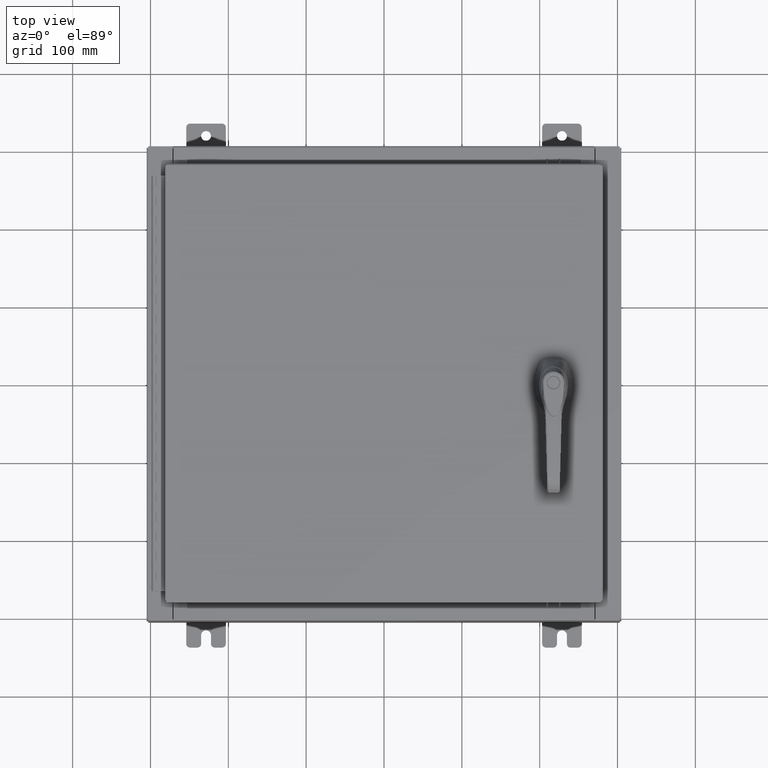
[diagram: clean part render]
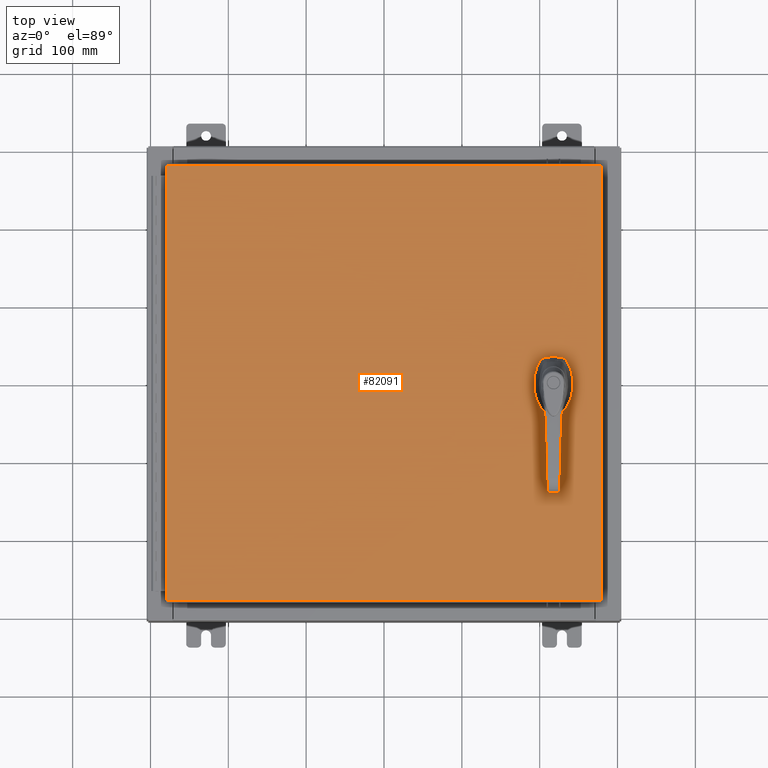
[diagram: same view with one face highlighted and labeled with its STEP entity id]
A machine part, top view. The second image highlights one B-rep face of the part: STEP entity #82091.
In plain terms, the highlighted planar face has unit normal (0, 0, -1).
Its self-contained STEP definition (entity closure, byte-faithful):
#1146 = CARTESIAN_POINT ( 'NONE',  ( 10.99029999999999600, -11.00630000000000100, -2.048885995248197400E-016 ) ) ;
#2213 = CIRCLE ( 'NONE', #97302, 0.1715000000000011500 ) ;
#3888 = CARTESIAN_POINT ( 'NONE',  ( 8.175000000000070000, 0.2002273707563079800, 0.0000000000000000000 ) ) ;
#5723 = CARTESIAN_POINT ( 'NONE',  ( 8.749499999999997600, -1.338000000000000100, 0.0000000000000000000 ) ) ;
#8527 = VECTOR ( 'NONE', #65810, 39.37007874015748100 ) ;
#8655 = CARTESIAN_POINT ( 'NONE',  ( 10.99029999999999800, 11.00629999999999600, -2.048885995248197400E-016 ) ) ;
#9836 = DIRECTION ( 'NONE',  ( 0.0000000000000000000, 1.000000000000000000, 0.0000000000000000000 ) ) ;
#10230 = DIRECTION ( 'NONE',  ( -0.0000000000000000000, 0.0000000000000000000, 1.000000000000000000 ) ) ;
#13142 = EDGE_CURVE ( 'NONE', #44727, #59702, #58127, .T. ) ;
#13822 = CARTESIAN_POINT ( 'NONE',  ( 0.0000000000000000000, -0.4029999999999252000, 0.0000000000000000000 ) ) ;
#15001 = LINE ( 'NONE', #43219, #20434 ) ;
#15226 = EDGE_CURVE ( 'NONE', #45711, #40094, #23970, .T. ) ;
#17154 = ORIENTED_EDGE ( 'NONE', *, *, #93615, .T. ) ;
#17390 = DIRECTION ( 'NONE',  ( -1.000000000000000000, -0.0000000000000000000, -0.0000000000000000000 ) ) ;
#19086 = EDGE_CURVE ( 'NONE', #77587, #98213, #90108, .T. ) ;
#19620 = EDGE_CURVE ( 'NONE', #52199, #32315, #39896, .T. ) ;
#20434 = VECTOR ( 'NONE', #34864, 39.37007874015748100 ) ;
#21237 = VECTOR ( 'NONE', #104829, 39.37007874015748100 ) ;
#21996 = DIRECTION ( 'NONE',  ( 2.728745808672812900E-015, -1.000000000000000000, 0.0000000000000000000 ) ) ;
#23509 = DIRECTION ( 'NONE',  ( 0.0000000000000000000, -1.000000000000000000, 0.0000000000000000000 ) ) ;
#23777 = CARTESIAN_POINT ( 'NONE',  ( 8.778227370756305000, -0.4029999999999252000, 0.0000000000000000000 ) ) ;
#23868 = DIRECTION ( 'NONE',  ( -1.000000000000000000, 0.0000000000000000000, -0.0000000000000000000 ) ) ;
#23970 = LINE ( 'NONE', #52984, #21237 ) ;
#27047 = ORIENTED_EDGE ( 'NONE', *, *, #78691, .F. ) ;
#27760 = ORIENTED_EDGE ( 'NONE', *, *, #54294, .F. ) ;
#29487 = CARTESIAN_POINT ( 'NONE',  ( 8.980999999999921700, 0.2002273707563080300, 0.0000000000000000000 ) ) ;
#29579 = DIRECTION ( 'NONE',  ( 0.0000000000000000000, -1.000000000000000000, 0.0000000000000000000 ) ) ;
#29899 = DIRECTION ( 'NONE',  ( -0.0000000000000000000, 0.0000000000000000000, 1.000000000000000000 ) ) ;
#31948 = LINE ( 'NONE', #8655, #78060 ) ;
#32315 = VERTEX_POINT ( 'NONE', #3888 ) ;
#33055 = CIRCLE ( 'NONE', #42823, 0.1715000000000011500 ) ;
#33489 = CARTESIAN_POINT ( 'NONE',  ( 8.175000000000070000, -0.2002273707563079800, 0.0000000000000000000 ) ) ;
#34095 = CARTESIAN_POINT ( 'NONE',  ( 8.980999999999921700, -0.2002273707563079800, 0.0000000000000000000 ) ) ;
#34211 = EDGE_CURVE ( 'NONE', #46255, #74174, #2213, .T. ) ;
#34864 = DIRECTION ( 'NONE',  ( -1.000000000000000000, 0.0000000000000000000, 0.0000000000000000000 ) ) ;
#35820 = CARTESIAN_POINT ( 'NONE',  ( 8.577999999999995900, -1.338000000000000100, 0.0000000000000000000 ) ) ;
#35999 = CARTESIAN_POINT ( 'NONE',  ( 8.377772629243686700, -0.4029999999999252000, 0.0000000000000000000 ) ) ;
#37830 = AXIS2_PLACEMENT_3D ( 'NONE', #99848, #47967, #108507 ) ;
#38571 = ORIENTED_EDGE ( 'NONE', *, *, #107822, .T. ) ;
#38963 = CARTESIAN_POINT ( 'NONE',  ( -10.99030000000000500, 11.00629999999999600, -1.348849946871729900E-015 ) ) ;
#39282 = ORIENTED_EDGE ( 'NONE', *, *, #71761, .F. ) ;
#39896 = CIRCLE ( 'NONE', #71897, 0.4499999999999156900 ) ;
#40094 = VERTEX_POINT ( 'NONE', #43011 ) ;
#40928 = CIRCLE ( 'NONE', #37830, 0.4499999999999156900 ) ;
#41470 = ORIENTED_EDGE ( 'NONE', *, *, #15226, .T. ) ;
#41840 = EDGE_CURVE ( 'NONE', #32315, #77587, #55306, .T. ) ;
#42823 = AXIS2_PLACEMENT_3D ( 'NONE', #81830, #29899, #90545 ) ;
#43011 = CARTESIAN_POINT ( 'NONE',  ( 10.99029999999999600, -11.00630000000000100, -2.048885995248197400E-016 ) ) ;
#43219 = CARTESIAN_POINT ( 'NONE',  ( 0.0000000000000000000, 0.4029999999999252000, 0.0000000000000000000 ) ) ;
#44447 = CARTESIAN_POINT ( 'NONE',  ( 8.577999999999995900, 0.0000000000000000000, 0.0000000000000000000 ) ) ;
#44494 = LINE ( 'NONE', #49275, #64783 ) ;
#44548 = DIRECTION ( 'NONE',  ( 1.000000000000000000, 0.0000000000000000000, 0.0000000000000000000 ) ) ;
#44727 = VERTEX_POINT ( 'NONE', #29487 ) ;
#45711 = VERTEX_POINT ( 'NONE', #82390 ) ;
#46255 = VERTEX_POINT ( 'NONE', #5723 ) ;
#47967 = DIRECTION ( 'NONE',  ( -0.0000000000000000000, 0.0000000000000000000, 1.000000000000000000 ) ) ;
#48053 = EDGE_LOOP ( 'NONE', ( #41470, #38571, #48644, #86475 ) ) ;
#48644 = ORIENTED_EDGE ( 'NONE', *, *, #93771, .T. ) ;
#48660 = CARTESIAN_POINT ( 'NONE',  ( 8.577999999999995900, 0.0000000000000000000, 0.0000000000000000000 ) ) ;
#49275 = CARTESIAN_POINT ( 'NONE',  ( -10.99030000000000500, 11.00629999999999600, -1.348849946871729900E-015 ) ) ;
#49925 = ORIENTED_EDGE ( 'NONE', *, *, #19620, .F. ) ;
#52199 = VERTEX_POINT ( 'NONE', #96086 ) ;
#52591 = VECTOR ( 'NONE', #29579, 39.37007874015748100 ) ;
#52798 = CARTESIAN_POINT ( 'NONE',  ( 10.99029999999999800, 11.00629999999999600, -2.048885995248197400E-016 ) ) ;
#52984 = CARTESIAN_POINT ( 'NONE',  ( -10.99030000000000000, -11.00630000000000100, -2.048885995248197400E-016 ) ) ;
#53128 = DIRECTION ( 'NONE',  ( 1.000000000000000000, 0.0000000000000000000, 0.0000000000000000000 ) ) ;
#53581 = VERTEX_POINT ( 'NONE', #52798 ) ;
#54276 = VERTEX_POINT ( 'NONE', #34095 ) ;
#54294 = EDGE_CURVE ( 'NONE', #59702, #52199, #15001, .T. ) ;
#55306 = LINE ( 'NONE', #107181, #52591 ) ;
#55675 = FACE_BOUND ( 'NONE', #71891, .T. ) ;
#56609 = AXIS2_PLACEMENT_3D ( 'NONE', #48660, #109209, #57362 ) ;
#56725 = AXIS2_PLACEMENT_3D ( 'NONE', #110189, #75784, #23868 ) ;
#57362 = DIRECTION ( 'NONE',  ( 1.000000000000000000, 0.0000000000000000000, 0.0000000000000000000 ) ) ;
#57795 = VERTEX_POINT ( 'NONE', #23777 ) ;
#58127 = CIRCLE ( 'NONE', #73065, 0.4499999999999156900 ) ;
#58404 = FACE_OUTER_BOUND ( 'NONE', #48053, .T. ) ;
#59702 = VERTEX_POINT ( 'NONE', #90898 ) ;
#62202 = CARTESIAN_POINT ( 'NONE',  ( 8.577999999999995900, 0.0000000000000000000, 0.0000000000000000000 ) ) ;
#64015 = ORIENTED_EDGE ( 'NONE', *, *, #34211, .F. ) ;
#64501 = VERTEX_POINT ( 'NONE', #38963 ) ;
#64783 = VECTOR ( 'NONE', #23509, 39.37007874015748100 ) ;
#65810 = DIRECTION ( 'NONE',  ( 1.000000000000000000, 0.0000000000000000000, 0.0000000000000000000 ) ) ;
#65874 = LINE ( 'NONE', #99682, #109176 ) ;
#70722 = CARTESIAN_POINT ( 'NONE',  ( 8.406499999999994100, -1.338000000000000100, 0.0000000000000000000 ) ) ;
#70899 = DIRECTION ( 'NONE',  ( 1.000000000000000000, 0.0000000000000000000, 0.0000000000000000000 ) ) ;
#71357 = VECTOR ( 'NONE', #9836, 39.37007874015748100 ) ;
#71761 = EDGE_CURVE ( 'NONE', #98213, #57795, #100749, .T. ) ;
#71793 = ORIENTED_EDGE ( 'NONE', *, *, #81194, .F. ) ;
#71891 = EDGE_LOOP ( 'NONE', ( #17154, #71793, #39282, #111910, #104695, #49925, #27760, #84222 ) ) ;
#71897 = AXIS2_PLACEMENT_3D ( 'NONE', #44447, #104993, #53128 ) ;
#73065 = AXIS2_PLACEMENT_3D ( 'NONE', #62202, #10230, #70899 ) ;
#74174 = VERTEX_POINT ( 'NONE', #70722 ) ;
#75784 = DIRECTION ( 'NONE',  ( 0.0000000000000000000, 0.0000000000000000000, -1.000000000000000000 ) ) ;
#75799 = EDGE_LOOP ( 'NONE', ( #64015, #27047 ) ) ;
#76772 = LINE ( 'NONE', #1146, #71357 ) ;
#77587 = VERTEX_POINT ( 'NONE', #33489 ) ;
#78060 = VECTOR ( 'NONE', #17390, 39.37007874015748100 ) ;
#78691 = EDGE_CURVE ( 'NONE', #74174, #46255, #33055, .T. ) ;
#78745 = FACE_BOUND ( 'NONE', #75799, .T. ) ;
#81194 = EDGE_CURVE ( 'NONE', #57795, #54276, #40928, .T. ) ;
#81830 = CARTESIAN_POINT ( 'NONE',  ( 8.577999999999995900, -1.338000000000000100, 0.0000000000000000000 ) ) ;
#82091 = ADVANCED_FACE ( 'NONE', ( #78745, #58404, #55675 ), #101157, .F. ) ;
#82390 = CARTESIAN_POINT ( 'NONE',  ( -10.99030000000000000, -11.00630000000000100, -2.048885995248197400E-016 ) ) ;
#84222 = ORIENTED_EDGE ( 'NONE', *, *, #13142, .F. ) ;
#86475 = ORIENTED_EDGE ( 'NONE', *, *, #91360, .T. ) ;
#90108 = CIRCLE ( 'NONE', #56609, 0.4499999999999156900 ) ;
#90545 = DIRECTION ( 'NONE',  ( 1.000000000000000000, 0.0000000000000000000, 0.0000000000000000000 ) ) ;
#90898 = CARTESIAN_POINT ( 'NONE',  ( 8.778227370756305000, 0.4029999999999252000, 0.0000000000000000000 ) ) ;
#91360 = EDGE_CURVE ( 'NONE', #64501, #45711, #44494, .T. ) ;
#93615 = EDGE_CURVE ( 'NONE', #44727, #54276, #65874, .T. ) ;
#93771 = EDGE_CURVE ( 'NONE', #53581, #64501, #31948, .T. ) ;
#96086 = CARTESIAN_POINT ( 'NONE',  ( 8.377772629243686700, 0.4029999999999252000, 0.0000000000000000000 ) ) ;
#96404 = DIRECTION ( 'NONE',  ( -0.0000000000000000000, 0.0000000000000000000, 1.000000000000000000 ) ) ;
#97302 = AXIS2_PLACEMENT_3D ( 'NONE', #35820, #96404, #44548 ) ;
#98213 = VERTEX_POINT ( 'NONE', #35999 ) ;
#99682 = CARTESIAN_POINT ( 'NONE',  ( 8.980999999999921700, 2.450686610769031800E-014, 0.0000000000000000000 ) ) ;
#99848 = CARTESIAN_POINT ( 'NONE',  ( 8.577999999999995900, 0.0000000000000000000, 0.0000000000000000000 ) ) ;
#100749 = LINE ( 'NONE', #13822, #8527 ) ;
#101157 = PLANE ( 'NONE',  #56725 ) ;
#104695 = ORIENTED_EDGE ( 'NONE', *, *, #41840, .F. ) ;
#104829 = DIRECTION ( 'NONE',  ( 1.000000000000000000, -0.0000000000000000000, -0.0000000000000000000 ) ) ;
#104993 = DIRECTION ( 'NONE',  ( -0.0000000000000000000, 0.0000000000000000000, 1.000000000000000000 ) ) ;
#107181 = CARTESIAN_POINT ( 'NONE',  ( 8.175000000000070000, 0.0000000000000000000, 0.0000000000000000000 ) ) ;
#107822 = EDGE_CURVE ( 'NONE', #40094, #53581, #76772, .T. ) ;
#108507 = DIRECTION ( 'NONE',  ( 1.000000000000000000, 0.0000000000000000000, 0.0000000000000000000 ) ) ;
#109176 = VECTOR ( 'NONE', #21996, 39.37007874015748100 ) ;
#109209 = DIRECTION ( 'NONE',  ( -0.0000000000000000000, 0.0000000000000000000, 1.000000000000000000 ) ) ;
#110189 = CARTESIAN_POINT ( 'NONE',  ( 0.0000000000000000000, 0.0000000000000000000, 0.0000000000000000000 ) ) ;
#111910 = ORIENTED_EDGE ( 'NONE', *, *, #19086, .F. ) ;